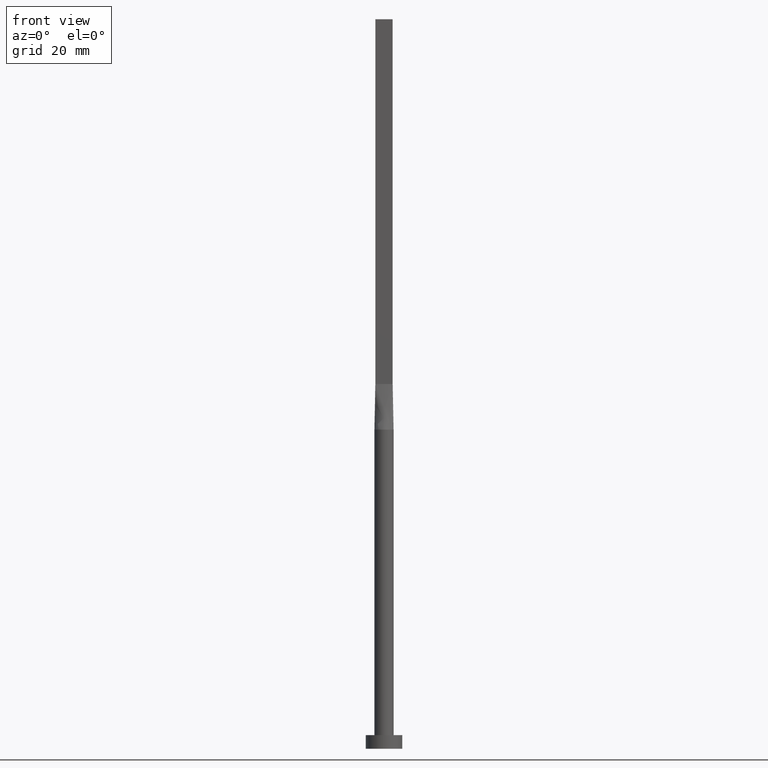
[diagram: clean part render]
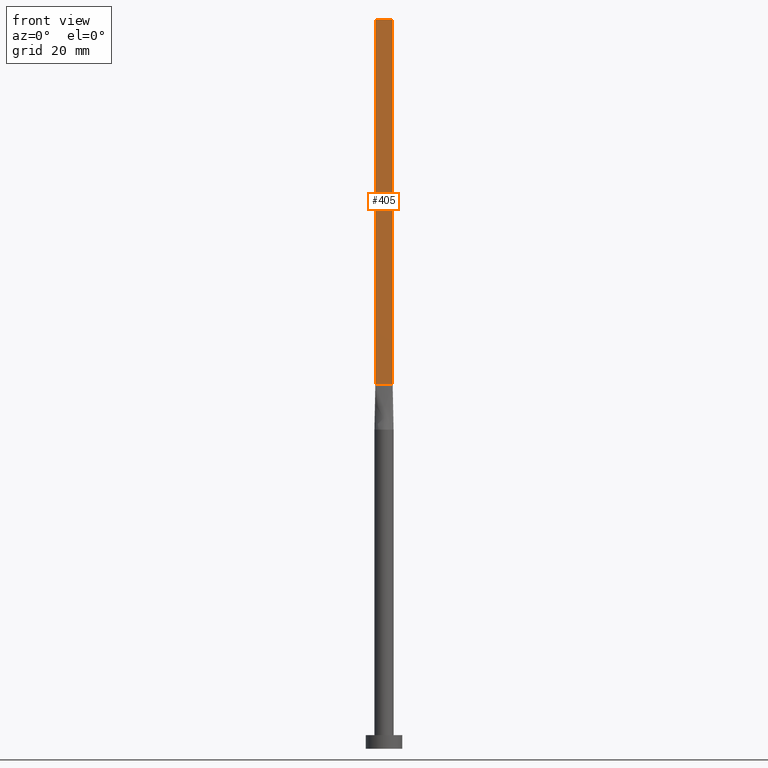
[diagram: same view with one face highlighted and labeled with its STEP entity id]
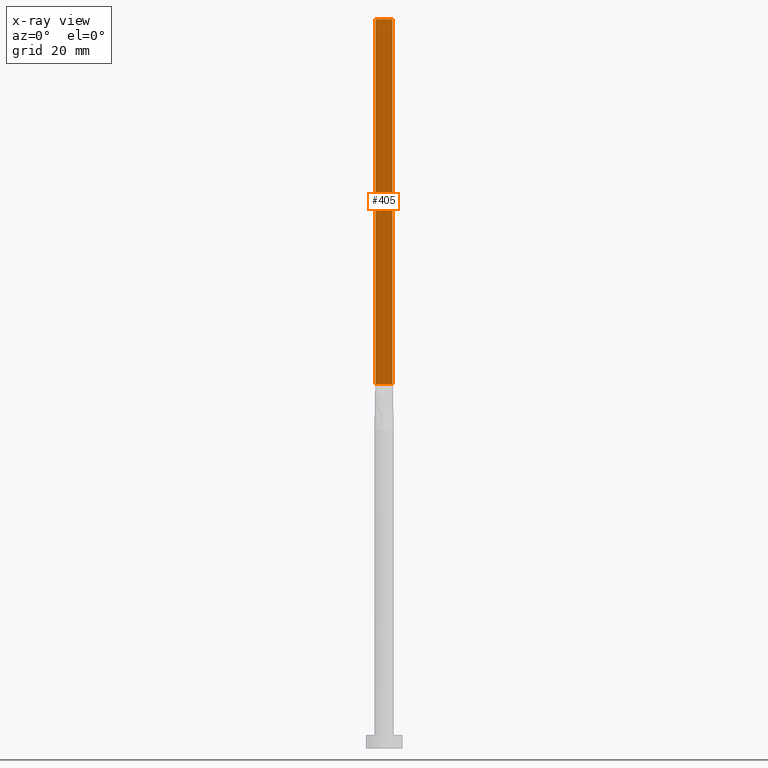
[diagram: x-ray of the same camera — body ghosted, the highlighted face saturated]
A machine part, front view. The second image highlights one B-rep face of the part: STEP entity #405.
The next image is the same camera in x-ray: the body ghosted, the highlighted face saturated — about 0% of this face is hidden behind the body in this view.
In plain terms, the highlighted planar face has unit normal (0, 1, -0).
Its self-contained STEP definition (entity closure, byte-faithful):
#21 = ORIENTED_EDGE ( 'NONE', *, *, #145, .F. ) ;
#31 = EDGE_LOOP ( 'NONE', ( #385, #121, #21, #469 ) ) ;
#34 = VECTOR ( 'NONE', #456, 1000.000000000000000 ) ;
#44 = VERTEX_POINT ( 'NONE', #382 ) ;
#61 = EDGE_CURVE ( 'NONE', #188, #44, #272, .T. ) ;
#111 = VERTEX_POINT ( 'NONE', #225 ) ;
#113 = LINE ( 'NONE', #152, #185 ) ;
#116 = VECTOR ( 'NONE', #183, 1000.000000000000000 ) ;
#121 = ORIENTED_EDGE ( 'NONE', *, *, #61, .F. ) ;
#129 = CARTESIAN_POINT ( 'NONE',  ( -1.899999999999999911, -0.2999999999999994893, 80.00000000000000000 ) ) ;
#145 = EDGE_CURVE ( 'NONE', #111, #188, #232, .T. ) ;
#152 = CARTESIAN_POINT ( 'NONE',  ( -1.899999999999999911, -0.2999999999999994893, 160.0000000000000000 ) ) ;
#154 = PLANE ( 'NONE',  #412 ) ;
#183 = DIRECTION ( 'NONE',  ( -0.000000000000000000, -0.000000000000000000, -1.000000000000000000 ) ) ;
#185 = VECTOR ( 'NONE', #339, 1000.000000000000000 ) ;
#188 = VERTEX_POINT ( 'NONE', #462 ) ;
#225 = CARTESIAN_POINT ( 'NONE',  ( -1.899999999999999911, -0.2999999999999994893, 160.0000000000000000 ) ) ;
#232 = LINE ( 'NONE', #417, #34 ) ;
#272 = LINE ( 'NONE', #275, #116 ) ;
#275 = CARTESIAN_POINT ( 'NONE',  ( 1.899999999999999023, -0.2999999999999997669, 160.0000000000000000 ) ) ;
#304 = DIRECTION ( 'NONE',  ( 1.000000000000000000, -7.132909029509898176E-17, 0.000000000000000000 ) ) ;
#329 = VECTOR ( 'NONE', #304, 1000.000000000000000 ) ;
#339 = DIRECTION ( 'NONE',  ( -0.000000000000000000, -0.000000000000000000, -1.000000000000000000 ) ) ;
#371 = DIRECTION ( 'NONE',  ( 7.132909029509899409E-17, 1.000000000000000000, -0.000000000000000000 ) ) ;
#379 = EDGE_CURVE ( 'NONE', #111, #427, #113, .T. ) ;
#382 = CARTESIAN_POINT ( 'NONE',  ( 1.899999999999999023, -0.2999999999999997669, 80.00000000000000000 ) ) ;
#385 = ORIENTED_EDGE ( 'NONE', *, *, #476, .T. ) ;
#405 = ADVANCED_FACE ( 'NONE', ( #463 ), #154, .F. ) ;
#412 = AXIS2_PLACEMENT_3D ( 'NONE', #520, #371, #516 ) ;
#417 = CARTESIAN_POINT ( 'NONE',  ( -1.899999999999999911, -0.2999999999999994893, 160.0000000000000000 ) ) ;
#427 = VERTEX_POINT ( 'NONE', #481 ) ;
#456 = DIRECTION ( 'NONE',  ( 1.000000000000000000, -7.132909029509899409E-17, 0.000000000000000000 ) ) ;
#462 = CARTESIAN_POINT ( 'NONE',  ( 1.899999999999999023, -0.2999999999999997669, 160.0000000000000000 ) ) ;
#463 = FACE_OUTER_BOUND ( 'NONE', #31, .T. ) ;
#469 = ORIENTED_EDGE ( 'NONE', *, *, #379, .T. ) ;
#476 = EDGE_CURVE ( 'NONE', #427, #44, #533, .T. ) ;
#481 = CARTESIAN_POINT ( 'NONE',  ( -1.899999999999999911, -0.2999999999999994893, 80.00000000000000000 ) ) ;
#516 = DIRECTION ( 'NONE',  ( -1.000000000000000000, 7.132909029509899409E-17, 0.000000000000000000 ) ) ;
#520 = CARTESIAN_POINT ( 'NONE',  ( -1.899999999999999911, -0.2999999999999994893, 160.0000000000000000 ) ) ;
#533 = LINE ( 'NONE', #129, #329 ) ;